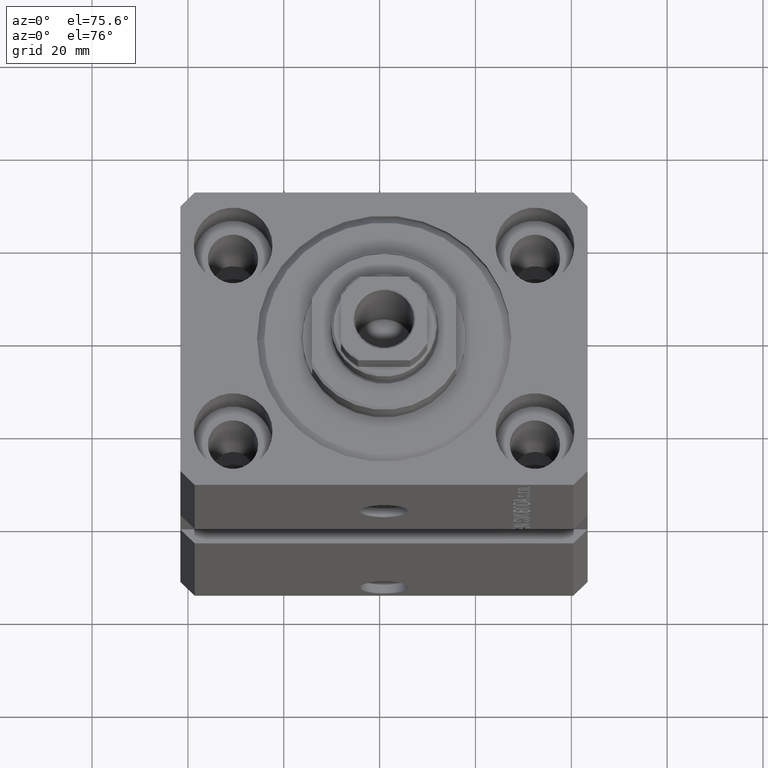
[diagram: clean part render]
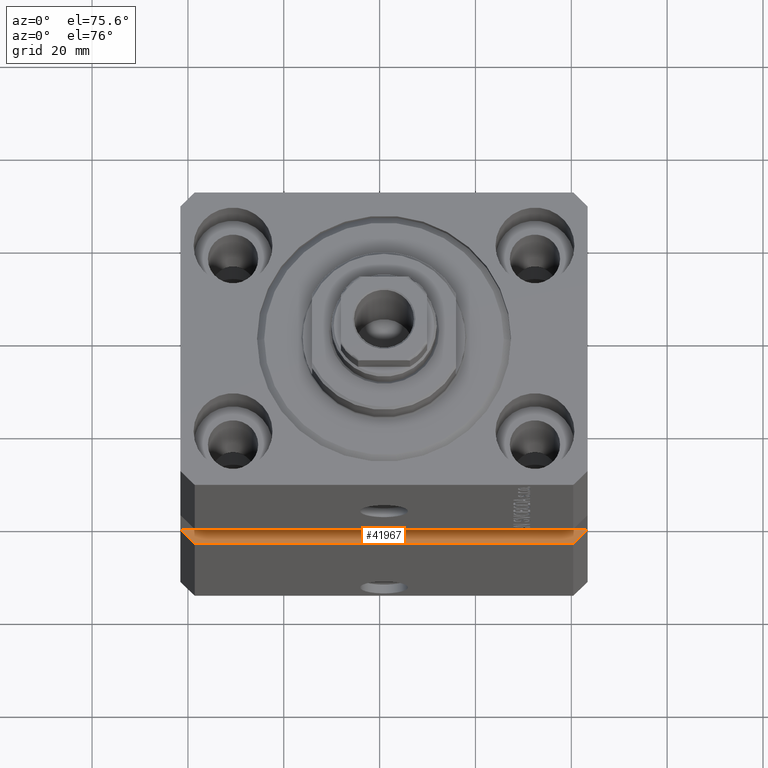
[diagram: same view with one face highlighted and labeled with its STEP entity id]
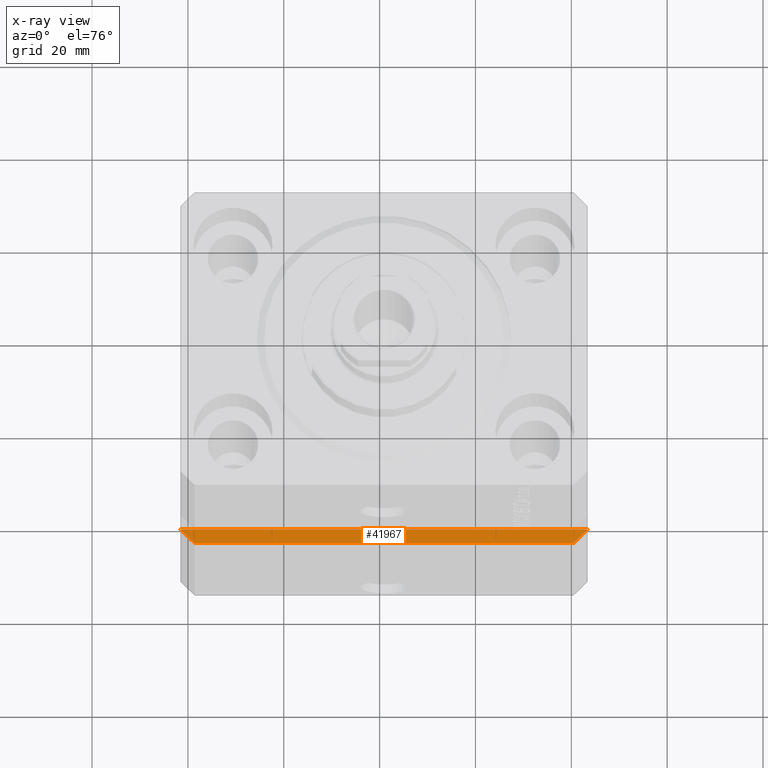
[diagram: x-ray of the same camera — body ghosted, the highlighted face saturated]
A machine part, auxiliary view. The second image highlights one B-rep face of the part: STEP entity #41967.
The next image is the same camera in x-ray: the body ghosted, the highlighted face saturated — about 0% of this face is hidden behind the body in this view.
In plain terms, the highlighted planar face has unit normal (0, 0, -1).
Its self-contained STEP definition (entity closure, byte-faithful):
#1884 = LINE ( 'NONE', #12674, #6940 ) ;
#2707 = EDGE_CURVE ( 'NONE', #15541, #22841, #41939, .T. ) ;
#5216 = PLANE ( 'NONE',  #31841 ) ;
#5894 = DIRECTION ( 'NONE',  ( 0.7071067811865471286, -0.7071067811865479058, 0.000000000000000000 ) ) ;
#6778 = VECTOR ( 'NONE', #7113, 1000.000000000000000 ) ;
#6940 = VECTOR ( 'NONE', #33274, 1000.000000000000000 ) ;
#7113 = DIRECTION ( 'NONE',  ( 1.000000000000000000, 1.632680918566406300E-16, 0.000000000000000000 ) ) ;
#8200 = DIRECTION ( 'NONE',  ( 0.000000000000000000, 0.000000000000000000, -1.000000000000000000 ) ) ;
#8338 = EDGE_CURVE ( 'NONE', #22841, #30637, #1884, .T. ) ;
#8517 = ORIENTED_EDGE ( 'NONE', *, *, #8338, .T. ) ;
#8543 = VECTOR ( 'NONE', #5894, 1000.000000000000000 ) ;
#10134 = ORIENTED_EDGE ( 'NONE', *, *, #16795, .T. ) ;
#10445 = LINE ( 'NONE', #37285, #8543 ) ;
#11048 = DIRECTION ( 'NONE',  ( 1.000000000000000000, 1.632680918566406300E-16, 0.000000000000000000 ) ) ;
#12098 = CARTESIAN_POINT ( 'NONE',  ( -42.50000000000000000, -28.50000000000000711, -48.99999999999999289 ) ) ;
#12674 = CARTESIAN_POINT ( 'NONE',  ( 39.50000000000000711, -31.50000000000000000, -48.99999999999999289 ) ) ;
#15541 = VERTEX_POINT ( 'NONE', #31333 ) ;
#16795 = EDGE_CURVE ( 'NONE', #19833, #15541, #10445, .T. ) ;
#19833 = VERTEX_POINT ( 'NONE', #27375 ) ;
#22841 = VERTEX_POINT ( 'NONE', #39187 ) ;
#23086 = ORIENTED_EDGE ( 'NONE', *, *, #39774, .F. ) ;
#27375 = CARTESIAN_POINT ( 'NONE',  ( -42.50000000000000000, -28.50000000000000711, -48.99999999999999289 ) ) ;
#28888 = CARTESIAN_POINT ( 'NONE',  ( -42.50000000000000000, -28.50000000000000711, -48.99999999999999289 ) ) ;
#30637 = VERTEX_POINT ( 'NONE', #30735 ) ;
#30735 = CARTESIAN_POINT ( 'NONE',  ( 42.50000000000001421, -28.49999999999999289, -48.99999999999999289 ) ) ;
#31333 = CARTESIAN_POINT ( 'NONE',  ( -39.50000000000000000, -31.50000000000000711, -48.99999999999999289 ) ) ;
#31841 = AXIS2_PLACEMENT_3D ( 'NONE', #12098, #8200, #32466 ) ;
#32466 = DIRECTION ( 'NONE',  ( -1.000000000000000000, 0.000000000000000000, -0.000000000000000000 ) ) ;
#33274 = DIRECTION ( 'NONE',  ( 0.7071067811865483499, 0.7071067811865466846, 0.000000000000000000 ) ) ;
#35779 = LINE ( 'NONE', #28888, #44979 ) ;
#37285 = CARTESIAN_POINT ( 'NONE',  ( -42.50000000000000000, -28.50000000000000000, -48.99999999999999289 ) ) ;
#38498 = CARTESIAN_POINT ( 'NONE',  ( -42.50000000000000000, -31.50000000000000711, -48.99999999999999289 ) ) ;
#39187 = CARTESIAN_POINT ( 'NONE',  ( 39.50000000000001421, -31.49999999999999289, -48.99999999999999289 ) ) ;
#39711 = ORIENTED_EDGE ( 'NONE', *, *, #2707, .T. ) ;
#39774 = EDGE_CURVE ( 'NONE', #19833, #30637, #35779, .T. ) ;
#40059 = FACE_OUTER_BOUND ( 'NONE', #41377, .T. ) ;
#41377 = EDGE_LOOP ( 'NONE', ( #8517, #23086, #10134, #39711 ) ) ;
#41939 = LINE ( 'NONE', #38498, #6778 ) ;
#41967 = ADVANCED_FACE ( 'NONE', ( #40059 ), #5216, .F. ) ;
#44979 = VECTOR ( 'NONE', #11048, 1000.000000000000000 ) ;